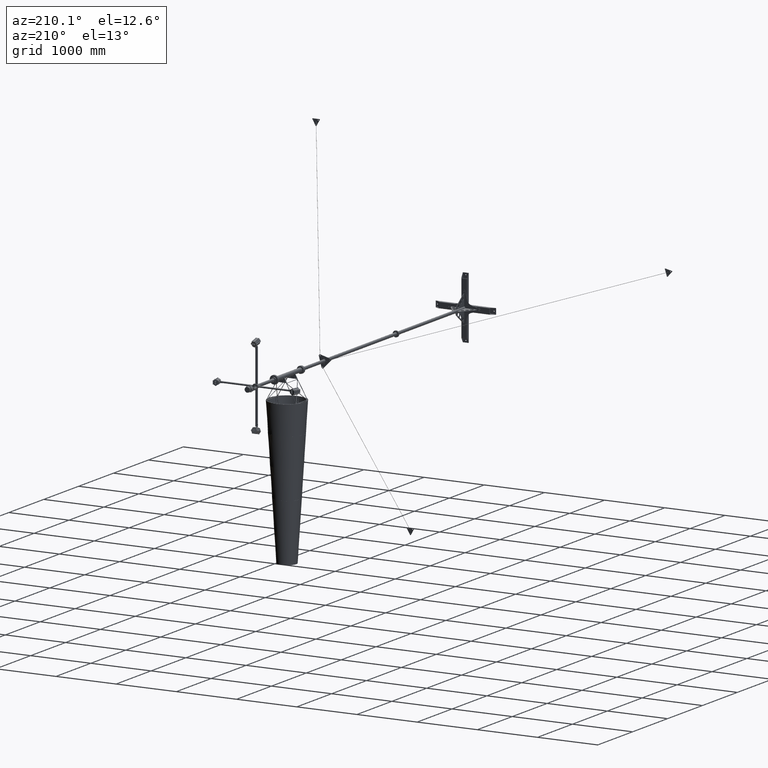
[diagram: clean part render]
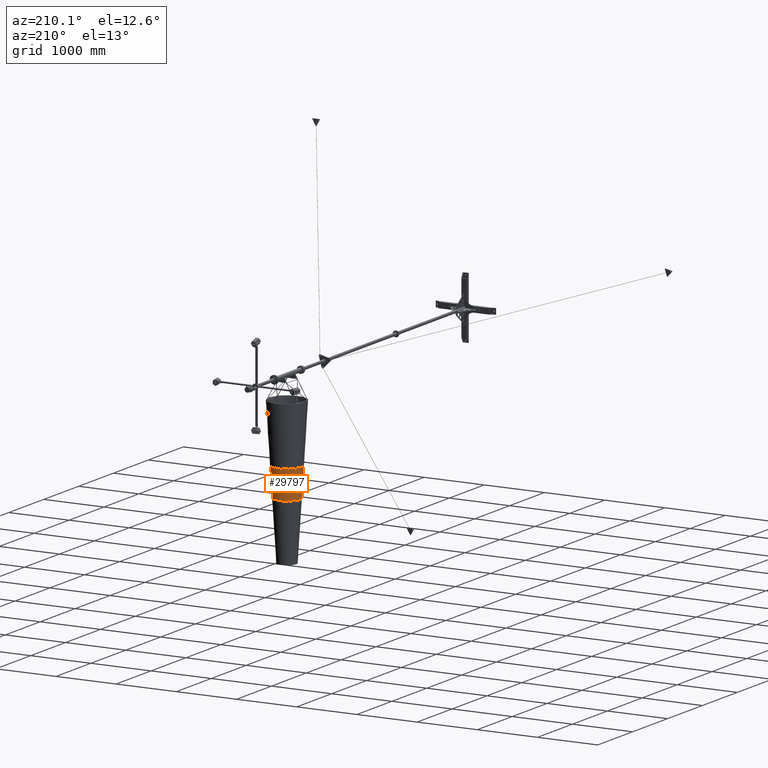
[diagram: same view with one face highlighted and labeled with its STEP entity id]
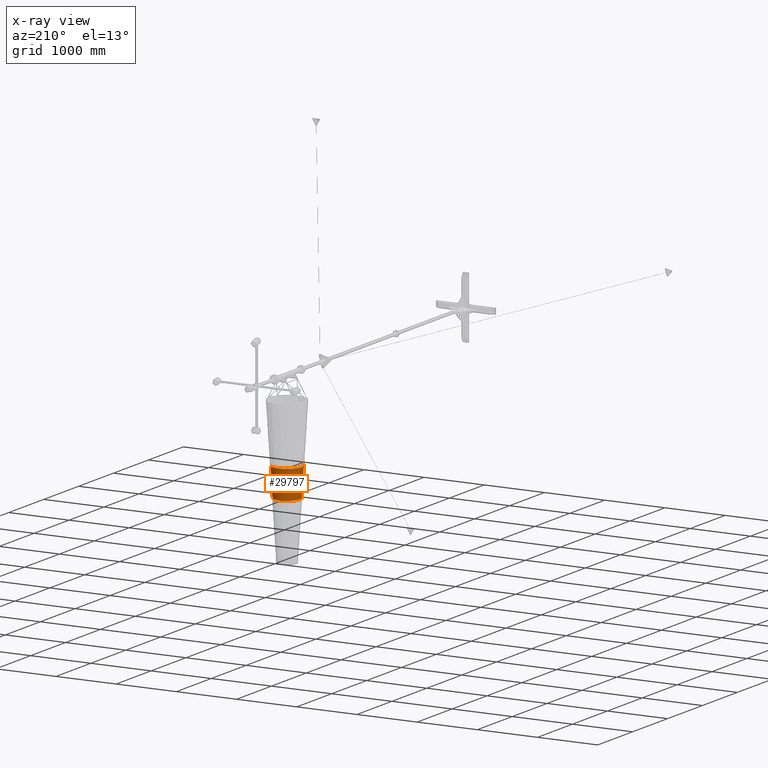
[diagram: x-ray of the same camera — body ghosted, the highlighted face saturated]
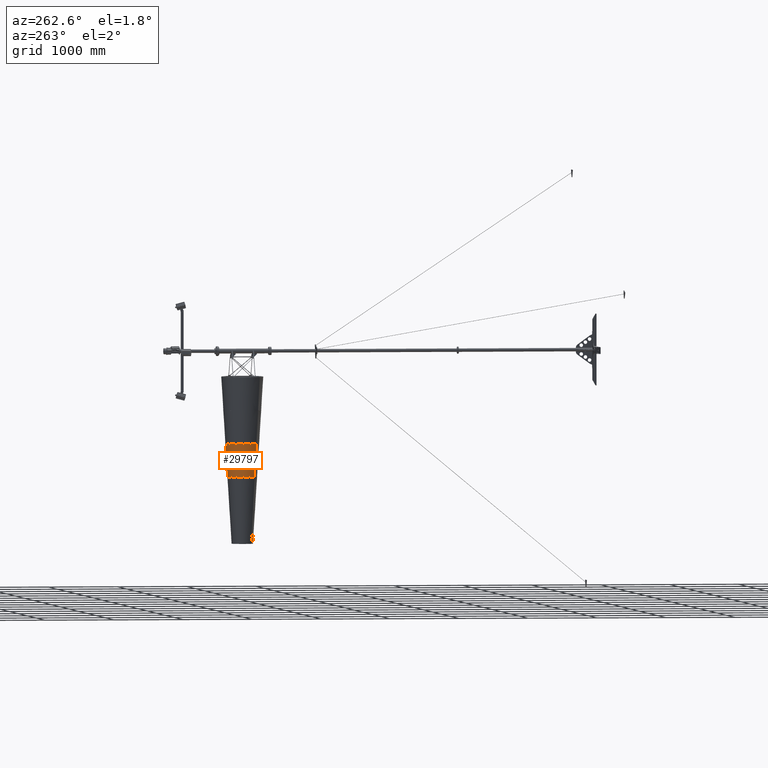
[diagram: same view with one face highlighted and labeled with its STEP entity id]
A machine part, auxiliary view. The second image highlights one B-rep face of the part: STEP entity #29797.
The next image is the same camera in x-ray: the body ghosted, the highlighted face saturated — about 0% of this face is hidden behind the body in this view.
A second angle (auxiliary view) of the same face is appended — the face is thin or edge-on in the first view.
In plain terms, the highlighted conical surface has half-angle 3.576 deg.
Its self-contained STEP definition (entity closure, byte-faithful):
#323 = EDGE_CURVE ( 'NONE', #26913, #22722, #14982, .T. ) ;
#948 = AXIS2_PLACEMENT_3D ( 'NONE', #16886, #37561, #19833 ) ;
#950 = DIRECTION ( 'NONE',  ( -1.000000000000000000, 0.0000000000000000000, -2.220446049250313600E-016 ) ) ;
#1309 = DIRECTION ( 'NONE',  ( -0.06237828615518091500, 0.9980525784828885300, 7.813880270675368100E-017 ) ) ;
#1965 = EDGE_CURVE ( 'NONE', #26913, #14133, #17954, .T. ) ;
#4693 = CARTESIAN_POINT ( 'NONE',  ( 244.5009756106841800, -959.9999999999993200, 8.423285625026189500E-014 ) ) ;
#8656 = LINE ( 'NONE', #24427, #31279 ) ;
#10217 = DIRECTION ( 'NONE',  ( -4.841167131310451100E-016, 1.000000000000000000, 9.216905661604722400E-017 ) ) ;
#12708 = DIRECTION ( 'NONE',  ( 0.06237828615517995000, 0.9980525784828886400, 1.134794633648327900E-016 ) ) ;
#12997 = EDGE_CURVE ( 'NONE', #22722, #28620, #8656, .T. ) ;
#13104 = ORIENTED_EDGE ( 'NONE', *, *, #12997, .T. ) ;
#14133 = VERTEX_POINT ( 'NONE', #20603 ) ;
#14982 = CIRCLE ( 'NONE', #19254, 214.5009756106837500 ) ;
#15761 = CARTESIAN_POINT ( 'NONE',  ( 214.5009756106842600, -1439.999999999999100, 5.694464338981406200E-014 ) ) ;
#16719 = EDGE_LOOP ( 'NONE', ( #32424, #13104, #27146, #35442 ) ) ;
#16886 = CARTESIAN_POINT ( 'NONE',  ( 4.440892098500626200E-013, -959.9999999999994300, 0.0000000000000000000 ) ) ;
#17713 = CONICAL_SURFACE ( 'NONE', #29944, 244.5009756106837000, 0.06241880999595723200 ) ;
#17954 = LINE ( 'NONE', #33690, #24896 ) ;
#19254 = AXIS2_PLACEMENT_3D ( 'NONE', #24560, #10217, #950 ) ;
#19833 = DIRECTION ( 'NONE',  ( -1.000000000000000000, 4.540771348057738600E-016, -2.220446049250313600E-016 ) ) ;
#20128 = CIRCLE ( 'NONE', #948, 244.5009756106837000 ) ;
#20603 = CARTESIAN_POINT ( 'NONE',  ( -244.5009756106832400, -959.9999999999995500, -5.429012253325900200E-014 ) ) ;
#22722 = VERTEX_POINT ( 'NONE', #15761 ) ;
#24427 = CARTESIAN_POINT ( 'NONE',  ( 244.5009756106841500, -959.9999999999995500, 8.423285625026187000E-014 ) ) ;
#24560 = CARTESIAN_POINT ( 'NONE',  ( 4.440892098500626200E-013, -1439.999999999999100, 0.0000000000000000000 ) ) ;
#24896 = VECTOR ( 'NONE', #1309, 1000.000000000000000 ) ;
#26913 = VERTEX_POINT ( 'NONE', #29246 ) ;
#27146 = ORIENTED_EDGE ( 'NONE', *, *, #27630, .F. ) ;
#27630 = EDGE_CURVE ( 'NONE', #14133, #28620, #20128, .T. ) ;
#28620 = VERTEX_POINT ( 'NONE', #4693 ) ;
#29246 = CARTESIAN_POINT ( 'NONE',  ( -214.5009756106833300, -1439.999999999999100, -4.762878438550805600E-014 ) ) ;
#29458 = DIRECTION ( 'NONE',  ( -4.841167131310451100E-016, 1.000000000000000000, 9.216905661604722400E-017 ) ) ;
#29797 = ADVANCED_FACE ( 'NONE', ( #37168 ), #17713, .T. ) ;
#29944 = AXIS2_PLACEMENT_3D ( 'NONE', #35376, #29458, #35514 ) ;
#31279 = VECTOR ( 'NONE', #12708, 1000.000000000000100 ) ;
#32424 = ORIENTED_EDGE ( 'NONE', *, *, #323, .T. ) ;
#33690 = CARTESIAN_POINT ( 'NONE',  ( -244.5009756106832700, -959.9999999999993200, -5.429012253325898300E-014 ) ) ;
#35376 = CARTESIAN_POINT ( 'NONE',  ( 4.440892098500626200E-013, -959.9999999999994300, 0.0000000000000000000 ) ) ;
#35442 = ORIENTED_EDGE ( 'NONE', *, *, #1965, .F. ) ;
#35514 = DIRECTION ( 'NONE',  ( -1.000000000000000000, 4.540771348057738600E-016, -2.220446049250313600E-016 ) ) ;
#37168 = FACE_OUTER_BOUND ( 'NONE', #16719, .T. ) ;
#37561 = DIRECTION ( 'NONE',  ( -4.841167131310451100E-016, 1.000000000000000000, 9.216905661604722400E-017 ) ) ;